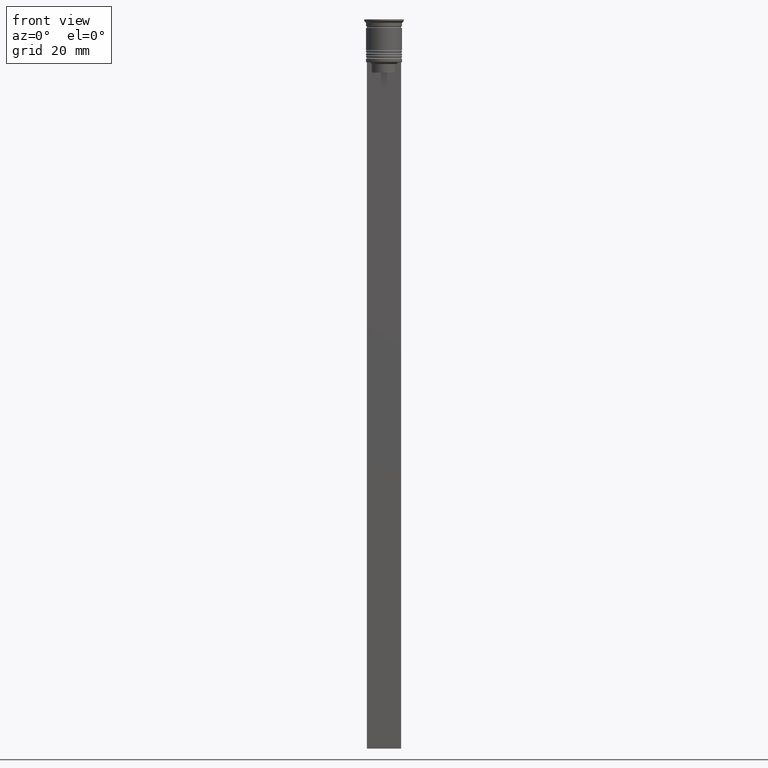
[diagram: clean part render]
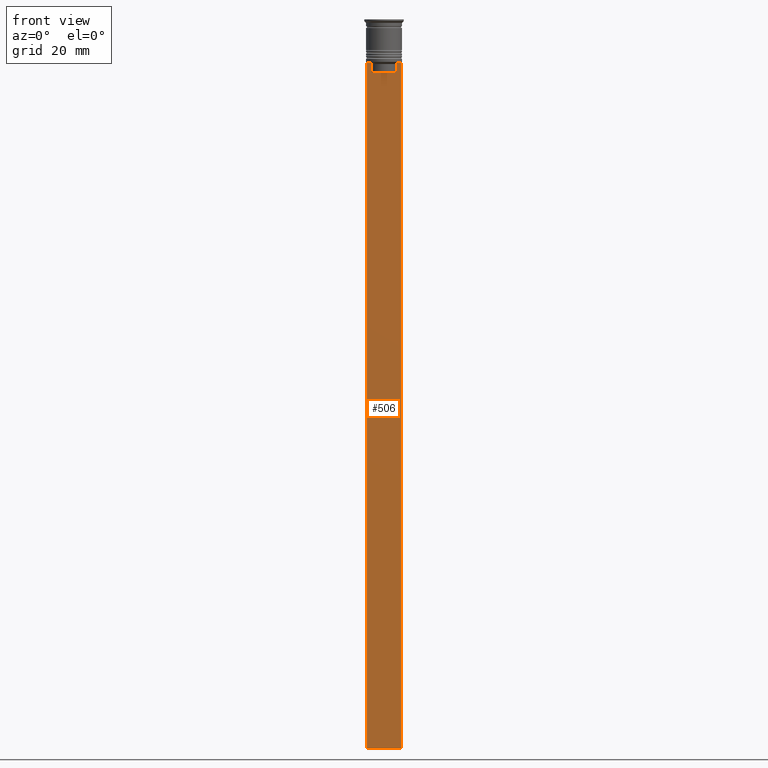
[diagram: same view with one face highlighted and labeled with its STEP entity id]
A machine part, front view. The second image highlights one B-rep face of the part: STEP entity #506.
In plain terms, the highlighted planar face has unit normal (0, -1, -0).
Its self-contained STEP definition (entity closure, byte-faithful):
#30 = CARTESIAN_POINT ( 'NONE',  ( 5.000000000000000000, -0.5000000000000008882, -12.50000000000000000 ) ) ;
#31 = B_SPLINE_CURVE_WITH_KNOTS ( 'NONE', 3,
 ( #1811, #1322, #51, #240 ),
 .UNSPECIFIED., .F., .F.,
 ( 4, 4 ),
 ( 0.007067514914986629433, 0.007777582239375527978 ),
 .UNSPECIFIED. ) ;
#51 = CARTESIAN_POINT ( 'NONE',  ( -3.783746449387932476, -0.5000000000000008882, -12.83342999751715752 ) ) ;
#90 = ORIENTED_EDGE ( 'NONE', *, *, #636, .F. ) ;
#95 = VERTEX_POINT ( 'NONE', #641 ) ;
#104 = FACE_OUTER_BOUND ( 'NONE', #2010, .T. ) ;
#109 = CARTESIAN_POINT ( 'NONE',  ( 3.615591237958188042, -0.5000000000000008882, -13.00000000000000178 ) ) ;
#113 = EDGE_CURVE ( 'NONE', #472, #1829, #663, .T. ) ;
#164 = LINE ( 'NONE', #1272, #962 ) ;
#178 = CARTESIAN_POINT ( 'NONE',  ( 3.615591237958188042, -0.5000000000000008882, -13.00000000000000178 ) ) ;
#240 = CARTESIAN_POINT ( 'NONE',  ( -3.615591237958188042, -0.5000000000000008882, -13.00000000000000178 ) ) ;
#356 = LINE ( 'NONE', #1444, #1579 ) ;
#409 = DIRECTION ( 'NONE',  ( 0.000000000000000000, 0.000000000000000000, -1.000000000000000000 ) ) ;
#442 = CARTESIAN_POINT ( 'NONE',  ( 4.119769411022908834, -0.5000000000000008882, -12.50000000000000000 ) ) ;
#454 = EDGE_CURVE ( 'NONE', #1133, #1332, #1011, .T. ) ;
#472 = VERTEX_POINT ( 'NONE', #2105 ) ;
#506 = ADVANCED_FACE ( 'NONE', ( #104 ), #2268, .T. ) ;
#516 = ORIENTED_EDGE ( 'NONE', *, *, #113, .T. ) ;
#527 = ORIENTED_EDGE ( 'NONE', *, *, #708, .F. ) ;
#545 = AXIS2_PLACEMENT_3D ( 'NONE', #849, #1924, #1569 ) ;
#597 = CARTESIAN_POINT ( 'NONE',  ( -4.119769411022908834, -0.5000000000000008882, -12.50000000000000000 ) ) ;
#620 = CARTESIAN_POINT ( 'NONE',  ( 3.783746406711540278, -0.5000000000000008882, -12.83343003979123509 ) ) ;
#636 = EDGE_CURVE ( 'NONE', #472, #1411, #164, .T. ) ;
#641 = CARTESIAN_POINT ( 'NONE',  ( 5.000000000000000000, -0.5000000000000008882, -212.5000000000000284 ) ) ;
#663 = LINE ( 'NONE', #2235, #1856 ) ;
#666 = CARTESIAN_POINT ( 'NONE',  ( -3.615591237958188042, -0.5000000000000008882, -13.00000000000000178 ) ) ;
#668 = LINE ( 'NONE', #808, #1873 ) ;
#708 = EDGE_CURVE ( 'NONE', #1662, #735, #1581, .T. ) ;
#724 = CARTESIAN_POINT ( 'NONE',  ( -4.999999999999999112, -0.5000000000000008882, -212.5000000000000284 ) ) ;
#735 = VERTEX_POINT ( 'NONE', #30 ) ;
#744 = ORIENTED_EDGE ( 'NONE', *, *, #960, .F. ) ;
#806 = VECTOR ( 'NONE', #874, 1000.000000000000000 ) ;
#808 = CARTESIAN_POINT ( 'NONE',  ( 5.000000000000000000, -0.5000000000000008882, -212.5000000000000284 ) ) ;
#838 = ORIENTED_EDGE ( 'NONE', *, *, #1475, .F. ) ;
#849 = CARTESIAN_POINT ( 'NONE',  ( 5.000000000000000000, -0.5000000000000008882, -2.450124378879110054 ) ) ;
#874 = DIRECTION ( 'NONE',  ( 1.000000000000000000, 0.000000000000000000, 0.000000000000000000 ) ) ;
#931 = ORIENTED_EDGE ( 'NONE', *, *, #1270, .F. ) ;
#960 = EDGE_CURVE ( 'NONE', #735, #95, #994, .T. ) ;
#962 = VECTOR ( 'NONE', #1404, 1000.000000000000000 ) ;
#994 = LINE ( 'NONE', #2023, #1618 ) ;
#1004 = VECTOR ( 'NONE', #1937, 1000.000000000000000 ) ;
#1011 = LINE ( 'NONE', #1703, #1004 ) ;
#1037 = ORIENTED_EDGE ( 'NONE', *, *, #1832, .F. ) ;
#1049 = CARTESIAN_POINT ( 'NONE',  ( 5.000000000000000000, -0.5000000000000008882, -12.50000000000000000 ) ) ;
#1133 = VERTEX_POINT ( 'NONE', #666 ) ;
#1240 = DIRECTION ( 'NONE',  ( 1.000000000000000000, 0.000000000000000000, 0.000000000000000000 ) ) ;
#1243 = VERTEX_POINT ( 'NONE', #178 ) ;
#1270 = EDGE_CURVE ( 'NONE', #2224, #1243, #356, .T. ) ;
#1272 = CARTESIAN_POINT ( 'NONE',  ( 5.000000000000000000, -0.5000000000000008882, -12.50000000000000000 ) ) ;
#1322 = CARTESIAN_POINT ( 'NONE',  ( -3.951794205566887985, -0.5000000000000008882, -12.66675159355373914 ) ) ;
#1332 = VERTEX_POINT ( 'NONE', #1492 ) ;
#1338 = CARTESIAN_POINT ( 'NONE',  ( 3.951794168112528816, -0.5000000000000008882, -12.66675163073525745 ) ) ;
#1354 = ORIENTED_EDGE ( 'NONE', *, *, #2045, .F. ) ;
#1379 = ORIENTED_EDGE ( 'NONE', *, *, #454, .F. ) ;
#1404 = DIRECTION ( 'NONE',  ( 1.000000000000000000, 0.000000000000000000, 0.000000000000000000 ) ) ;
#1411 = VERTEX_POINT ( 'NONE', #597 ) ;
#1444 = CARTESIAN_POINT ( 'NONE',  ( 3.615591237958188042, -0.5000000000000008882, 0.000000000000000000 ) ) ;
#1475 = EDGE_CURVE ( 'NONE', #1243, #1662, #2164, .T. ) ;
#1492 = CARTESIAN_POINT ( 'NONE',  ( -3.615591237958188486, -0.5000000000000008882, -15.50000000000000000 ) ) ;
#1569 = DIRECTION ( 'NONE',  ( 0.000000000000000000, 0.000000000000000000, -1.000000000000000000 ) ) ;
#1579 = VECTOR ( 'NONE', #2136, 1000.000000000000000 ) ;
#1581 = LINE ( 'NONE', #1049, #1775 ) ;
#1618 = VECTOR ( 'NONE', #409, 1000.000000000000000 ) ;
#1662 = VERTEX_POINT ( 'NONE', #1743 ) ;
#1703 = CARTESIAN_POINT ( 'NONE',  ( -3.615591237958188042, -0.5000000000000008882, 0.000000000000000000 ) ) ;
#1740 = LINE ( 'NONE', #2304, #806 ) ;
#1743 = CARTESIAN_POINT ( 'NONE',  ( 4.119769411022908834, -0.5000000000000008882, -12.50000000000000000 ) ) ;
#1775 = VECTOR ( 'NONE', #1240, 1000.000000000000000 ) ;
#1811 = CARTESIAN_POINT ( 'NONE',  ( -4.119769411022908834, -0.5000000000000008882, -12.50000000000000000 ) ) ;
#1829 = VERTEX_POINT ( 'NONE', #724 ) ;
#1832 = EDGE_CURVE ( 'NONE', #1411, #1133, #31, .T. ) ;
#1856 = VECTOR ( 'NONE', #1896, 1000.000000000000000 ) ;
#1865 = CARTESIAN_POINT ( 'NONE',  ( 3.615591237958188486, -0.5000000000000008882, -15.50000000000000000 ) ) ;
#1873 = VECTOR ( 'NONE', #1917, 1000.000000000000000 ) ;
#1896 = DIRECTION ( 'NONE',  ( 0.000000000000000000, 0.000000000000000000, -1.000000000000000000 ) ) ;
#1917 = DIRECTION ( 'NONE',  ( -1.000000000000000000, 0.000000000000000000, 0.000000000000000000 ) ) ;
#1924 = DIRECTION ( 'NONE',  ( 0.000000000000000000, -1.000000000000000000, -0.000000000000000000 ) ) ;
#1937 = DIRECTION ( 'NONE',  ( 0.000000000000000000, 0.000000000000000000, -1.000000000000000000 ) ) ;
#2010 = EDGE_LOOP ( 'NONE', ( #1037, #90, #516, #2072, #744, #527, #838, #931, #1354, #1379 ) ) ;
#2023 = CARTESIAN_POINT ( 'NONE',  ( 5.000000000000000000, -0.5000000000000008882, -2.450124378879110054 ) ) ;
#2045 = EDGE_CURVE ( 'NONE', #1332, #2224, #1740, .T. ) ;
#2072 = ORIENTED_EDGE ( 'NONE', *, *, #2316, .F. ) ;
#2105 = CARTESIAN_POINT ( 'NONE',  ( -4.999999999999999112, -0.5000000000000008882, -12.50000000000000000 ) ) ;
#2136 = DIRECTION ( 'NONE',  ( -0.000000000000000000, -0.000000000000000000, 1.000000000000000000 ) ) ;
#2164 = B_SPLINE_CURVE_WITH_KNOTS ( 'NONE', 3,
 ( #109, #620, #1338, #442 ),
 .UNSPECIFIED., .F., .F.,
 ( 4, 4 ),
 ( 0.01745179617248909451, 0.01816207215777257411 ),
 .UNSPECIFIED. ) ;
#2224 = VERTEX_POINT ( 'NONE', #1865 ) ;
#2235 = CARTESIAN_POINT ( 'NONE',  ( -4.999999999999999112, -0.5000000000000008882, -2.450124378879110054 ) ) ;
#2268 = PLANE ( 'NONE',  #545 ) ;
#2304 = CARTESIAN_POINT ( 'NONE',  ( 0.000000000000000000, -0.5000000000000008882, -15.50000000000000000 ) ) ;
#2316 = EDGE_CURVE ( 'NONE', #95, #1829, #668, .T. ) ;